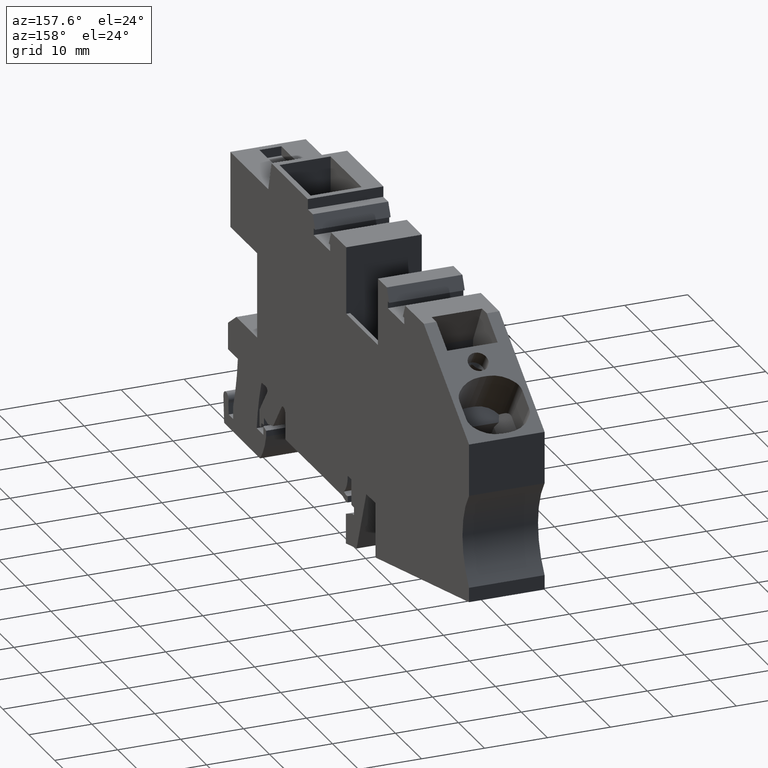
[diagram: clean part render]
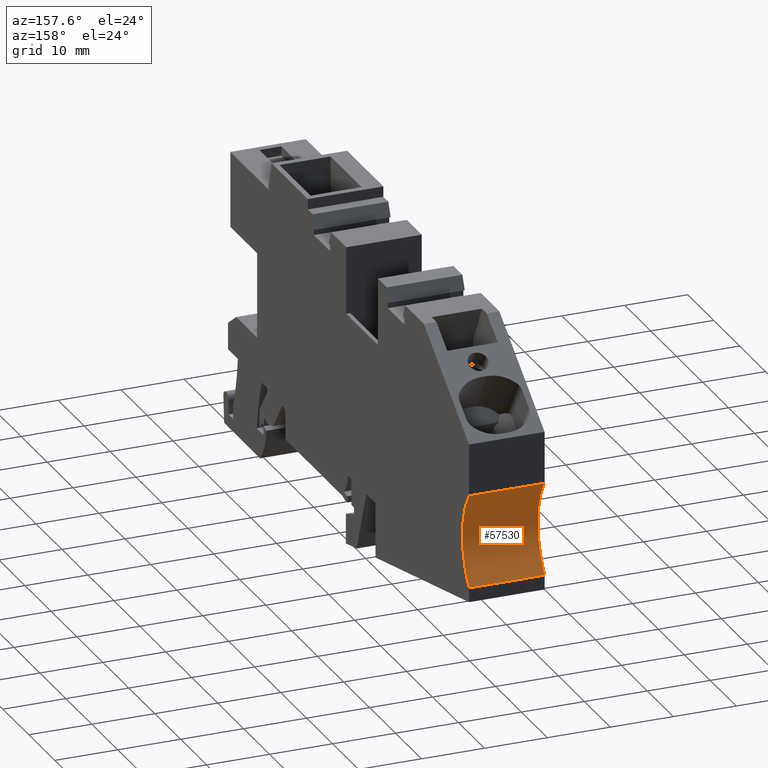
[diagram: same view with one face highlighted and labeled with its STEP entity id]
A machine part, auxiliary view. The second image highlights one B-rep face of the part: STEP entity #57530.
In plain terms, the highlighted cylindrical surface (partial cylindrical patch) has radius 12 mm, axis along (1, -0, -0).
Its self-contained STEP definition (entity closure, byte-faithful):
#1000=CARTESIAN_POINT('',(93.0346105,5.1393656445204,20.25));
#1010=VERTEX_POINT('',#1000);
#1040=CARTESIAN_POINT('',(102.488484637719,12.5301859999999,20.25));
#1050=DIRECTION('',(0.,0.,1.));
#1060=DIRECTION('',(1.,0.,0.));
#1070=AXIS2_PLACEMENT_3D('',#1040,#1050,#1060);
#1080=CIRCLE('',#1070,11.9999984057833);
#1090=CARTESIAN_POINT('',(93.0346104999997,19.9210063554791,20.25));
#1100=VERTEX_POINT('',#1090);
#1110=EDGE_CURVE('',#1100,#1010,#1080,.T.);
#12470=CARTESIAN_POINT('',(93.0346104999997,19.9210063554791,
32.2500000042363));
#12480=VERTEX_POINT('',#12470);
#12510=CARTESIAN_POINT('',(102.488484637719,12.5301859999999,
32.2500000042363));
#12520=DIRECTION('',(0.,0.,1.));
#12530=DIRECTION('',(1.,0.,0.));
#12540=AXIS2_PLACEMENT_3D('',#12510,#12520,#12530);
#12550=CIRCLE('',#12540,11.9999984057833);
#12560=CARTESIAN_POINT('',(93.0346105,5.1393656445204,32.2500000042363))
;
#12570=VERTEX_POINT('',#12560);
#12580=EDGE_CURVE('',#12480,#12570,#12550,.T.);
#56480=CARTESIAN_POINT('',(93.0346105,5.1393656445204,20.25));
#56490=DIRECTION('',(0.,0.,-1.));
#56500=VECTOR('',#56490,1.);
#56510=LINE('',#56480,#56500);
#56520=EDGE_CURVE('',#12570,#1010,#56510,.T.);
#57370=CARTESIAN_POINT('',(102.488484637719,12.5301859999999,20.25));
#57380=DIRECTION('',(0.,0.,1.));
#57390=DIRECTION('',(1.,0.,0.));
#57400=AXIS2_PLACEMENT_3D('',#57370,#57380,#57390);
#57410=CYLINDRICAL_SURFACE('',#57400,11.9999984057833);
#57420=ORIENTED_EDGE('',*,*,#1110,.F.);
#57430=ORIENTED_EDGE('',*,*,#56520,.T.);
#57440=ORIENTED_EDGE('',*,*,#12580,.T.);
#57450=CARTESIAN_POINT('',(93.0346104999997,19.9210063554791,20.25));
#57460=DIRECTION('',(0.,0.,-1.));
#57470=VECTOR('',#57460,1.);
#57480=LINE('',#57450,#57470);
#57490=EDGE_CURVE('',#12480,#1100,#57480,.T.);
#57500=ORIENTED_EDGE('',*,*,#57490,.F.);
#57510=EDGE_LOOP('',(#57500,#57440,#57430,#57420));
#57520=FACE_OUTER_BOUND('',#57510,.T.);
#57530=ADVANCED_FACE('',(#57520),#57410,.F.);